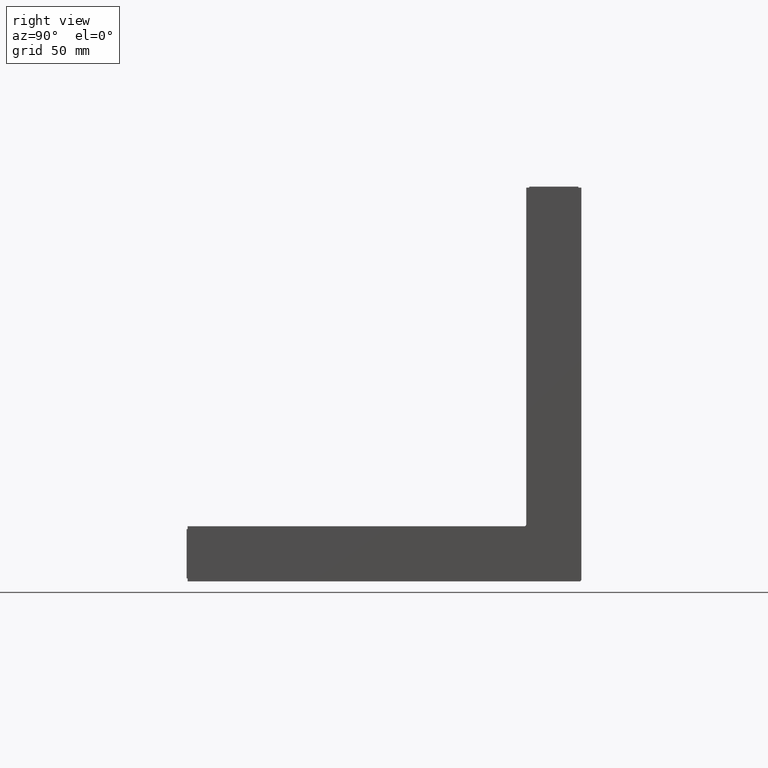
[diagram: clean part render]
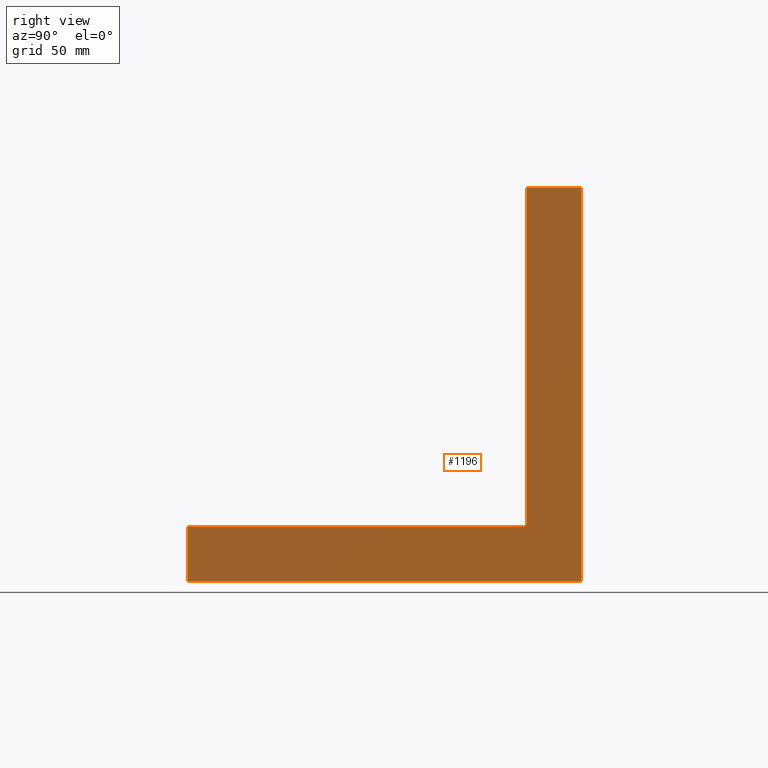
[diagram: same view with one face highlighted and labeled with its STEP entity id]
A machine part, right view. The second image highlights one B-rep face of the part: STEP entity #1196.
In plain terms, the highlighted planar face has unit normal (1, 0, 0).
Its self-contained STEP definition (entity closure, byte-faithful):
#749=DIRECTION('',(0.E0,0.E0,1.E0));
#750=VECTOR('',#749,2.8E1);
#751=CARTESIAN_POINT('',(1.86E2,0.E0,-2.E2));
#752=LINE('',#751,#750);
#806=DIRECTION('',(-1.E0,0.E0,0.E0));
#807=VECTOR('',#806,2.8E1);
#808=CARTESIAN_POINT('',(1.4E1,0.E0,0.E0));
#809=LINE('',#808,#807);
#827=DIRECTION('',(0.E0,0.E0,1.E0));
#828=VECTOR('',#827,1.71E2);
#829=CARTESIAN_POINT('',(1.4E1,0.E0,-1.71E2));
#830=LINE('',#829,#828);
#849=CARTESIAN_POINT('',(1.5E1,0.E0,-1.71E2));
#850=DIRECTION('',(0.E0,1.E0,0.E0));
#851=DIRECTION('',(0.E0,0.E0,-1.E0));
#852=AXIS2_PLACEMENT_3D('',#849,#850,#851);
#871=DIRECTION('',(-1.E0,0.E0,0.E0));
#872=VECTOR('',#871,1.71E2);
#873=CARTESIAN_POINT('',(1.86E2,0.E0,-1.72E2));
#874=LINE('',#873,#872);
#885=DIRECTION('',(0.E0,0.E0,-1.E0));
#886=VECTOR('',#885,1.99E2);
#887=CARTESIAN_POINT('',(-1.4E1,0.E0,0.E0));
#888=LINE('',#887,#886);
#899=CARTESIAN_POINT('',(-1.3E1,0.E0,-1.99E2));
#900=DIRECTION('',(0.E0,-1.E0,0.E0));
#901=DIRECTION('',(-1.E0,0.E0,0.E0));
#902=AXIS2_PLACEMENT_3D('',#899,#900,#901);
#914=DIRECTION('',(1.E0,0.E0,0.E0));
#915=VECTOR('',#914,1.99E2);
#916=CARTESIAN_POINT('',(-1.3E1,0.E0,-2.E2));
#917=LINE('',#916,#915);
#986=CARTESIAN_POINT('',(-1.4E1,0.E0,0.E0));
#987=CARTESIAN_POINT('',(-1.4E1,0.E0,-1.99E2));
#988=VERTEX_POINT('',#986);
#989=VERTEX_POINT('',#987);
#990=CARTESIAN_POINT('',(1.4E1,0.E0,0.E0));
#991=VERTEX_POINT('',#990);
#992=CARTESIAN_POINT('',(1.4E1,0.E0,-1.71E2));
#993=VERTEX_POINT('',#992);
#994=CARTESIAN_POINT('',(1.5E1,0.E0,-1.72E2));
#995=VERTEX_POINT('',#994);
#996=CARTESIAN_POINT('',(1.86E2,0.E0,-1.72E2));
#997=VERTEX_POINT('',#996);
#998=CARTESIAN_POINT('',(1.86E2,0.E0,-2.E2));
#999=VERTEX_POINT('',#998);
#1000=CARTESIAN_POINT('',(-1.3E1,0.E0,-2.E2));
#1001=VERTEX_POINT('',#1000);
#1178=CARTESIAN_POINT('',(-1.3E1,0.E0,-1.99E2));
#1179=DIRECTION('',(0.E0,-1.E0,0.E0));
#1180=DIRECTION('',(0.E0,0.E0,-1.E0));
#1181=AXIS2_PLACEMENT_3D('',#1178,#1179,#1180);
#1182=PLANE('',#1181);
#1184=ORIENTED_EDGE('',*,*,#1183,.F.);
#1185=ORIENTED_EDGE('',*,*,#1127,.F.);
#1186=ORIENTED_EDGE('',*,*,#1145,.F.);
#1187=ORIENTED_EDGE('',*,*,#1159,.F.);
#1188=ORIENTED_EDGE('',*,*,#1172,.F.);
#1189=ORIENTED_EDGE('',*,*,#1070,.F.);
#1191=ORIENTED_EDGE('',*,*,#1190,.F.);
#1193=ORIENTED_EDGE('',*,*,#1192,.F.);
#1194=EDGE_LOOP('',(#1184,#1185,#1186,#1187,#1188,#1189,#1191,#1193));
#1195=FACE_OUTER_BOUND('',#1194,.F.);
#853=CIRCLE('',#852,1.E0);
#903=CIRCLE('',#902,1.E0);
#1070=EDGE_CURVE('',#999,#997,#752,.T.);
#1127=EDGE_CURVE('',#991,#988,#809,.T.);
#1145=EDGE_CURVE('',#993,#991,#830,.T.);
#1159=EDGE_CURVE('',#995,#993,#853,.T.);
#1172=EDGE_CURVE('',#997,#995,#874,.T.);
#1183=EDGE_CURVE('',#988,#989,#888,.T.);
#1190=EDGE_CURVE('',#1001,#999,#917,.T.);
#1192=EDGE_CURVE('',#989,#1001,#903,.T.);
#1196=ADVANCED_FACE('',(#1195),#1182,.T.);